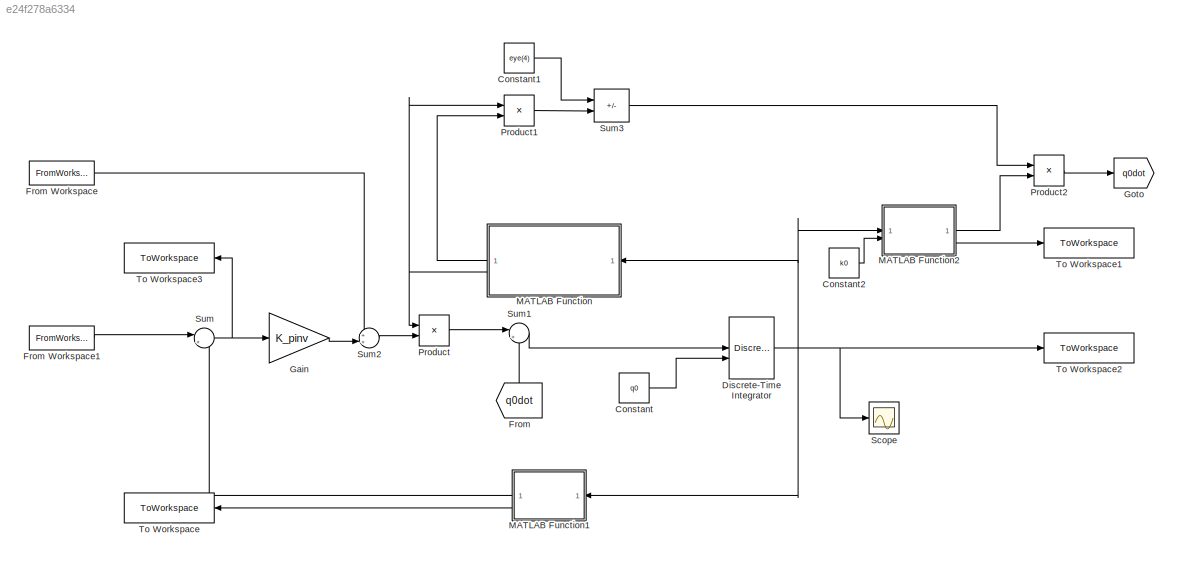
MODEL slx_e24f278a6334
KIND model
CONFIG AbsTol = auto
CONFIG EnableMultiTasking = off
CONFIG FixedStep = auto
CONFIG MaxStep = auto
CONFIG MinStep = auto
CONFIG RelTol = 1e-3
CONFIG SampleTimeConstraint = Unconstrained
CONFIG SolverName = VariableStepAuto
CONFIG StartTime = 0.0
CONFIG StopTime = 50
BLOCK [Constant] Constant
  Value = q0
BLOCK [Constant] Constant1
  Value = eye(4)
BLOCK [Constant] Constant2
  Value = k0
BLOCK [DiscreteIntegrator] Discrete-Time Integrator
  ICPrevOutput = DiscIntNeverNeededParam
  ICPrevScaledInput = DiscIntNeverNeededParam
  InitialCondition = [0 -pi/2 -0.5 pi/2]'
  InitialConditionSetting = Auto
  InitialConditionSource = external
  SampleTime = Tc
BLOCK [From] From
  GotoTag = q0dot
  NameLocation = right
BLOCK [FromWorkspace] From Workspace
  SampleTime = Tc
  VariableName = xdpdot
BLOCK [FromWorkspace] From Workspace1
  SampleTime = Tc
  VariableName = xdp
BLOCK [Gain] Gain
  Gain = K_pinv
  Multiplication = Matrix(K*u) (u vector)
BLOCK [Goto] Goto
  GotoTag = q0dot
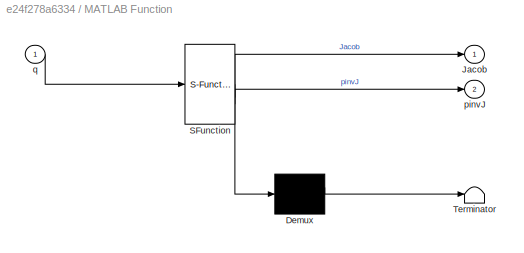
BLOCK [SubSystem] MATLAB Function
  ErrorFcn = Stateflow.Translate.translate
  NameLocation = top
  PermitHierarchicalResolution = ExplicitOnly
  SFBlockType = MATLAB Function
  TreatAsAtomicUnit = on
BLOCK [Demux] MATLAB Function/ Demux 
  Outputs = 1
BLOCK [S-Function] MATLAB Function/ SFunction 
  EnableBusSupport = on
  FunctionName = sf_sfun
  PortCounts = [1 3]
  SFcnIsStateOwnerBlock = off
  SFunctionDeploymentMode = off
  Tag = Stateflow S-Function 2
BLOCK [Terminator] MATLAB Function/ Terminator 
BLOCK [Outport] MATLAB Function/Jacob
BLOCK [Outport] MATLAB Function/pinvJ
  Port = 2
BLOCK [Inport] MATLAB Function/q
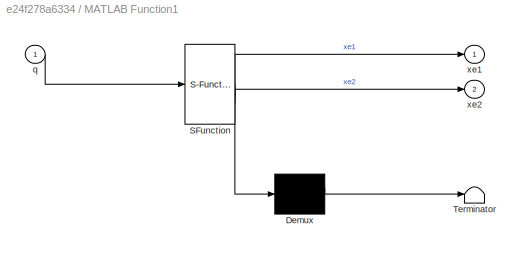
BLOCK [SubSystem] MATLAB Function1
  ErrorFcn = Stateflow.Translate.translate
  NameLocation = top
  PermitHierarchicalResolution = ExplicitOnly
  SFBlockType = MATLAB Function
  TreatAsAtomicUnit = on
BLOCK [Demux] MATLAB Function1/ Demux 
  Outputs = 1
BLOCK [S-Function] MATLAB Function1/ SFunction 
  EnableBusSupport = on
  FunctionName = sf_sfun
  PortCounts = [1 3]
  SFcnIsStateOwnerBlock = off
  SFunctionDeploymentMode = off
  Tag = Stateflow S-Function 1
BLOCK [Terminator] MATLAB Function1/ Terminator 
BLOCK [Inport] MATLAB Function1/q
BLOCK [Outport] MATLAB Function1/xe1
BLOCK [Outport] MATLAB Function1/xe2
  Port = 2
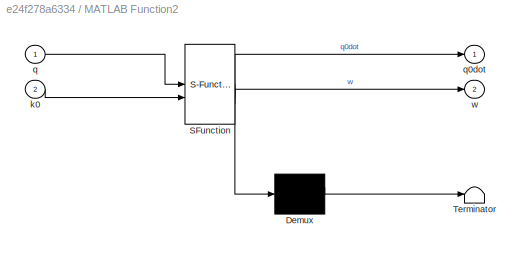
BLOCK [SubSystem] MATLAB Function2
  ErrorFcn = Stateflow.Translate.translate
  PermitHierarchicalResolution = ExplicitOnly
  SFBlockType = MATLAB Function
  TreatAsAtomicUnit = on
BLOCK [Demux] MATLAB Function2/ Demux 
  Outputs = 1
BLOCK [S-Function] MATLAB Function2/ SFunction 
  EnableBusSupport = on
  FunctionName = sf_sfun
  PortCounts = [2 3]
  SFcnIsStateOwnerBlock = off
  SFunctionDeploymentMode = off
  Tag = Stateflow S-Function 3
BLOCK [Terminator] MATLAB Function2/ Terminator 
BLOCK [Inport] MATLAB Function2/k0
  Port = 2
BLOCK [Inport] MATLAB Function2/q
BLOCK [Outport] MATLAB Function2/q0dot
BLOCK [Outport] MATLAB Function2/w
  Port = 2
BLOCK [Product] Product
  Multiplication = Matrix(*)
BLOCK [Product] Product1
  Multiplication = Matrix(*)
BLOCK [Product] Product2
  Multiplication = Matrix(*)
BLOCK [Scope] Scope
  Floating = off
  NumInputPorts = 1
  ScopeSpecificationString = Simulink.scopes.TimeScopeBlockCfg('CurrentConfiguration', extmgr.ConfigurationSet(extmgr.Configuration('Core','General UI',true),extmgr.Configuration('Core','Source UI',true),extmgr.Configuration('Sources','WiredSimulink',true),extmgr.Configuration('Visuals','Time Domain',true,'SerializedDisplays',{struct('MinYLimReal','-7.72382','MaxYLimReal','6.58413','YLabelReal','','MinYLimMag','0.00000','MaxY...<+1473ch>
BLOCK [Sum] Sum
  Inputs = |+-
BLOCK [Sum] Sum1
  Inputs = |++
BLOCK [Sum] Sum2
  Inputs = ++|
BLOCK [Sum] Sum3
  IconShape = rectangular
  Inputs = +-
BLOCK [ToWorkspace] To Workspace
  FixptAsFi = on
  MaxDataPoints = inf
  NameLocation = top
  SampleTime = -1
  SaveFormat = Structure With Time
  VariableName = xe_pinv
BLOCK [ToWorkspace] To Workspace1
  FixptAsFi = on
  MaxDataPoints = inf
  SampleTime = -1
  SaveFormat = Structure With Time
  VariableName = w
BLOCK [ToWorkspace] To Workspace2
  FixptAsFi = on
  MaxDataPoints = inf
  SampleTime = -1
  SaveFormat = Structure With Time
  VariableName = q_pinv
BLOCK [ToWorkspace] To Workspace3
  FixptAsFi = on
  MaxDataPoints = inf
  NameLocation = top
  SampleTime = -1
  SaveFormat = Structure With Time
  VariableName = e_pinv
LINE Constant1:1 -> Sum3:1
LINE Constant2:1 -> MATLAB Function2:2
LINE Constant:1 -> Discrete-Time Integrator:2
NET Discrete-Time Integrator:1 -> MATLAB Function1:1, MATLAB Function2:1, MATLAB Function:1, Scope:1, To Workspace2:1
LINE From Workspace1:1 -> Sum:1
LINE From Workspace:1 -> Sum2:1
LINE From:1 -> Sum1:2
LINE Gain:1 -> Sum2:2
LINE MATLAB Function1:1 -> Sum:2
LINE MATLAB Function1:2 -> To Workspace:1
LINE MATLAB Function2:1 -> Product2:2
LINE MATLAB Function2:2 -> To Workspace1:1
LINE MATLAB Function:1 -> Product1:2
NET MATLAB Function:2 -> Product1:1, Product:1
LINE Product1:1 -> Sum3:2
LINE Product2:1 -> Goto:1
LINE Product:1 -> Sum1:1
LINE Sum1:1 -> Discrete-Time Integrator:1
LINE Sum2:1 -> Product:2
LINE Sum3:1 -> Product2:1
NET Sum:1 -> Gain:1, To Workspace3:1
note: NET lines group one-source signal fan-out (src -> all destinations, sorted); 1:1 wires keep LINE
CHART MATLAB Function states=1 transitions=1
  STATE_LABEL 'eML_blk_kernel()'
  STATE_LABEL 'SCRIPT:\nfunction [Jacob,pinvJ]=pseudoinversa(q)\na1=0.5;\na2=a1;\n\nJacob=[-a1*sin(q(1))-a2*sin(q(1)+q(2)),-a2*sin(q(1)+q(2)),0,0;\n    a1*cos(q(1))+a2*cos(q(1)+q(2)),a2*cos(q(1)+q(2)),0,0;...\n    1,1,0,1];\n\npinvJ=pinv(Jacob);\nend\n\n\n'
CHART MATLAB Function2 states=1 transitions=1
  STATE_LABEL 'eML_blk_kernel()'
  STATE_LABEL "SCRIPT:\nfunction [q0dot ,w] = destrezza(q,k0)\n\nw=(sin(q(2)))^2;\ndw=[0 2*sin(q(2))*cos(q(2)) 0 0]';\n\nq0dot=k0*dw;\n\nend"
CHART MATLAB Function1 states=1 transitions=1
  STATE_LABEL 'eML_blk_kernel()'
  STATE_LABEL 'SCRIPT:\nfunction [xe1, xe2] = dirkin(q)\na1=0.5;\na2=a1;\nd0=1;\n\n\nxe1=[a1*cos(q(1))+a2*cos(q(1)+q(2));\n    a1*sin(q(1))+a2*sin(q(1)+q(2));...\n    q(1)+q(2)+q(4)];\n\nxe2=[a1*cos(q(1))+a2*cos(q(1)+q(2));...\n    a1*sin(q(1))+a2*sin(q(1)+q(2));...\n    d0+q(3);...\n    q(1)+q(2)+q(4)];\nend\n'
CHART  states=0 transitions=0
CHART  states=0 transitions=0
CHART  states=0 transitions=0
